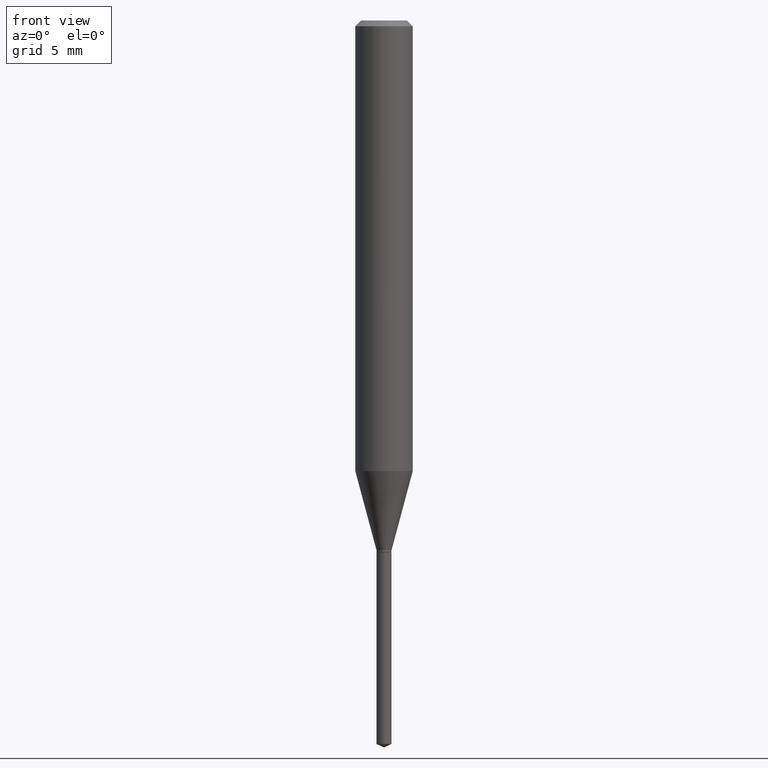
[diagram: clean part render]
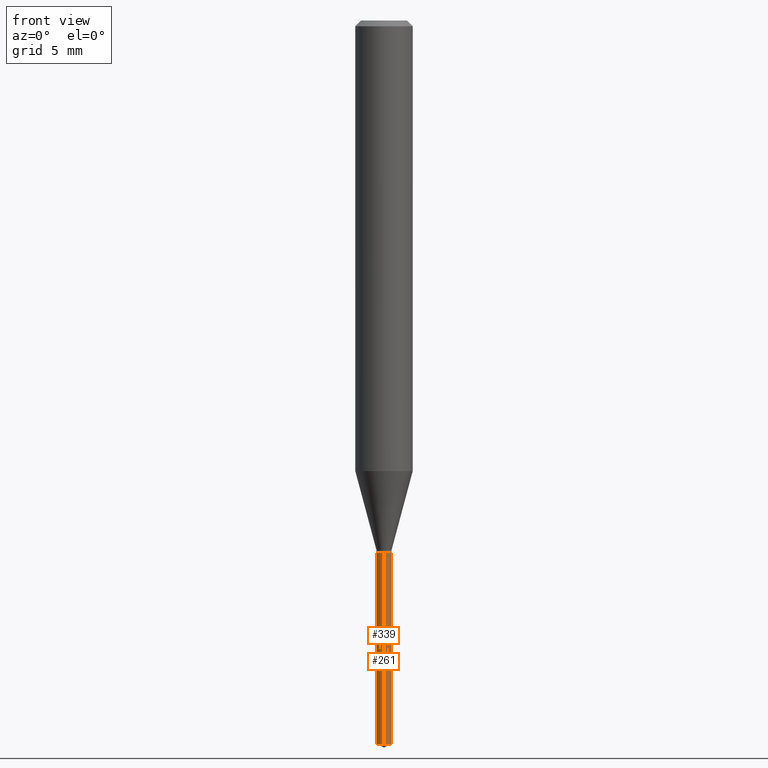
[diagram: same view with one multi-face feature highlighted, each face labeled with its STEP entity id]
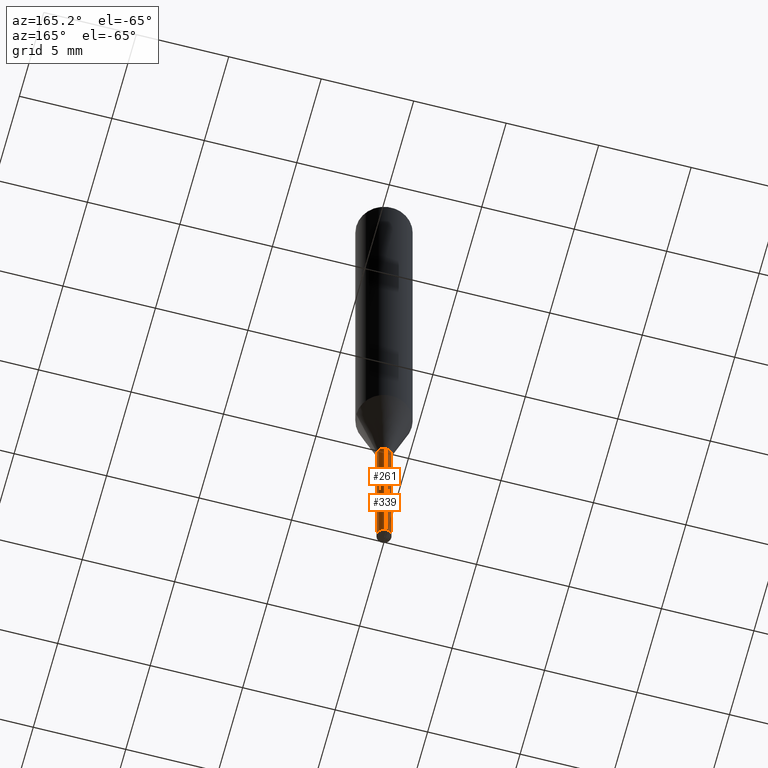
[diagram: same view with one multi-face feature highlighted, each face labeled with its STEP entity id]
A machine part, front view. The highlighted faces form ONE feature: a constant-radius fillet chain: 2 tangent blend faces with common blend radius 0.395 mm. The faces share edges in the B-rep.
A second angle (auxiliary view) of the same feature is appended — it is thin or edge-on in the first view.
Their STEP definitions:
[1] entity #261 (Cylinder):
#9 = CARTESIAN_POINT ( 'NONE',  ( 1.104893954107223233E-16, 0.01554999999999617626, -1.094499999999999806 ) ) ;
#15 = CARTESIAN_POINT ( 'NONE',  ( 1.104893954107319992E-16, 0.01554999999999480235, -1.488848915915689686 ) ) ;
#21 = CARTESIAN_POINT ( 'NONE',  ( 2.676565608369631794E-29, -3.821426325363822773E-15, -1.094499999999999806 ) ) ;
#27 = LINE ( 'NONE', #413, #350 ) ;
#72 = AXIS2_PLACEMENT_3D ( 'NONE', #78, #227, #305 ) ;
#78 = CARTESIAN_POINT ( 'NONE',  ( 3.640934136390131342E-29, -5.198287410918146511E-15, -1.488848915915689686 ) ) ;
#79 = ORIENTED_EDGE ( 'NONE', *, *, #431, .T. ) ;
#82 = EDGE_CURVE ( 'NONE', #337, #141, #274, .T. ) ;
#93 = FACE_OUTER_BOUND ( 'NONE', #434, .T. ) ;
#106 = ORIENTED_EDGE ( 'NONE', *, *, #426, .F. ) ;
#127 = AXIS2_PLACEMENT_3D ( 'NONE', #21, #363, #129 ) ;
#129 = DIRECTION ( 'NONE',  ( -6.982962677686265922E-15, -1.000000000000000000, 0.000000000000000000 ) ) ;
#136 = VERTEX_POINT ( 'NONE', #466 ) ;
#139 = ORIENTED_EDGE ( 'NONE', *, *, #82, .T. ) ;
#141 = VERTEX_POINT ( 'NONE', #314 ) ;
#159 = DIRECTION ( 'NONE',  ( -2.445470214571802396E-29, 3.491479321953280158E-15, 1.000000000000000000 ) ) ;
#186 = DIRECTION ( 'NONE',  ( -6.982962677686265922E-15, -1.000000000000000000, 0.000000000000000000 ) ) ;
#217 = DIRECTION ( 'NONE',  ( -2.445470214571802116E-29, 3.491479321953280158E-15, 1.000000000000000000 ) ) ;
#221 = DIRECTION ( 'NONE',  ( -2.445470214571802396E-29, 3.491479321953280158E-15, 1.000000000000000000 ) ) ;
#227 = DIRECTION ( 'NONE',  ( -2.445470214571802116E-29, 3.491479321953280158E-15, 1.000000000000000000 ) ) ;
#246 = VECTOR ( 'NONE', #159, 39.37007874015748143 ) ;
#261 = ADVANCED_FACE ( 'NONE', ( #93 ), #323, .T. ) ;
#265 = CIRCLE ( 'NONE', #285, 0.01554999999999999959 ) ;
#274 = LINE ( 'NONE', #9, #246 ) ;
#285 = AXIS2_PLACEMENT_3D ( 'NONE', #301, #217, #186 ) ;
#301 = CARTESIAN_POINT ( 'NONE',  ( 2.676565608369631794E-29, -3.821426325363822773E-15, -1.094499999999999806 ) ) ;
#305 = DIRECTION ( 'NONE',  ( -6.982962677686265922E-15, -1.000000000000000000, 0.000000000000000000 ) ) ;
#314 = CARTESIAN_POINT ( 'NONE',  ( 1.104893954107320238E-16, 0.01554999999999617626, -1.094499999999999806 ) ) ;
#323 = CYLINDRICAL_SURFACE ( 'NONE', #127, 0.01554999999999999959 ) ;
#337 = VERTEX_POINT ( 'NONE', #15 ) ;
#350 = VECTOR ( 'NONE', #221, 39.37007874015748143 ) ;
#353 = CIRCLE ( 'NONE', #72, 0.01554999999999999959 ) ;
#363 = DIRECTION ( 'NONE',  ( -2.445470214571802116E-29, 3.491479321953280158E-15, 1.000000000000000000 ) ) ;
#364 = ORIENTED_EDGE ( 'NONE', *, *, #485, .F. ) ;
#404 = CARTESIAN_POINT ( 'NONE',  ( -1.085850696379946697E-16, -0.01555000000000382118, -1.094499999999999806 ) ) ;
#405 = VERTEX_POINT ( 'NONE', #404 ) ;
#413 = CARTESIAN_POINT ( 'NONE',  ( -1.085850696379946697E-16, -0.01555000000000382118, -1.094499999999999806 ) ) ;
#426 = EDGE_CURVE ( 'NONE', #405, #141, #265, .T. ) ;
#431 = EDGE_CURVE ( 'NONE', #136, #337, #353, .T. ) ;
#434 = EDGE_LOOP ( 'NONE', ( #79, #139, #106, #364 ) ) ;
#466 = CARTESIAN_POINT ( 'NONE',  ( -1.085850696379850431E-16, -0.01555000000000520202, -1.488848915915689686 ) ) ;
#485 = EDGE_CURVE ( 'NONE', #136, #405, #27, .T. ) ;
[2] entity #339 (Cylinder):
#9 = CARTESIAN_POINT ( 'NONE',  ( 1.104893954107223233E-16, 0.01554999999999617626, -1.094499999999999806 ) ) ;
#15 = CARTESIAN_POINT ( 'NONE',  ( 1.104893954107319992E-16, 0.01554999999999480235, -1.488848915915689686 ) ) ;
#27 = LINE ( 'NONE', #413, #350 ) ;
#46 = AXIS2_PLACEMENT_3D ( 'NONE', #402, #210, #475 ) ;
#49 = DIRECTION ( 'NONE',  ( -6.982962677686265922E-15, -1.000000000000000000, 0.000000000000000000 ) ) ;
#74 = AXIS2_PLACEMENT_3D ( 'NONE', #248, #212, #49 ) ;
#82 = EDGE_CURVE ( 'NONE', #337, #141, #274, .T. ) ;
#101 = CIRCLE ( 'NONE', #74, 0.01554999999999999959 ) ;
#132 = ORIENTED_EDGE ( 'NONE', *, *, #412, .F. ) ;
#136 = VERTEX_POINT ( 'NONE', #466 ) ;
#141 = VERTEX_POINT ( 'NONE', #314 ) ;
#159 = DIRECTION ( 'NONE',  ( -2.445470214571802396E-29, 3.491479321953280158E-15, 1.000000000000000000 ) ) ;
#170 = ORIENTED_EDGE ( 'NONE', *, *, #485, .T. ) ;
#208 = FACE_OUTER_BOUND ( 'NONE', #444, .T. ) ;
#210 = DIRECTION ( 'NONE',  ( -2.445470214571802116E-29, 3.491479321953280158E-15, 1.000000000000000000 ) ) ;
#212 = DIRECTION ( 'NONE',  ( -2.445470214571802116E-29, 3.491479321953280158E-15, 1.000000000000000000 ) ) ;
#221 = DIRECTION ( 'NONE',  ( -2.445470214571802396E-29, 3.491479321953280158E-15, 1.000000000000000000 ) ) ;
#246 = VECTOR ( 'NONE', #159, 39.37007874015748143 ) ;
#248 = CARTESIAN_POINT ( 'NONE',  ( 2.676565608369631794E-29, -3.821426325363822773E-15, -1.094499999999999806 ) ) ;
#249 = ORIENTED_EDGE ( 'NONE', *, *, #82, .F. ) ;
#251 = DIRECTION ( 'NONE',  ( -6.982962677686265922E-15, -1.000000000000000000, 0.000000000000000000 ) ) ;
#274 = LINE ( 'NONE', #9, #246 ) ;
#314 = CARTESIAN_POINT ( 'NONE',  ( 1.104893954107320238E-16, 0.01554999999999617626, -1.094499999999999806 ) ) ;
#331 = CYLINDRICAL_SURFACE ( 'NONE', #46, 0.01554999999999999959 ) ;
#337 = VERTEX_POINT ( 'NONE', #15 ) ;
#339 = ADVANCED_FACE ( 'NONE', ( #208 ), #331, .T. ) ;
#350 = VECTOR ( 'NONE', #221, 39.37007874015748143 ) ;
#395 = CARTESIAN_POINT ( 'NONE',  ( 3.640934136390131342E-29, -5.198287410918146511E-15, -1.488848915915689686 ) ) ;
#398 = EDGE_CURVE ( 'NONE', #337, #136, #454, .T. ) ;
#402 = CARTESIAN_POINT ( 'NONE',  ( 2.676565608369631794E-29, -3.821426325363822773E-15, -1.094499999999999806 ) ) ;
#404 = CARTESIAN_POINT ( 'NONE',  ( -1.085850696379946697E-16, -0.01555000000000382118, -1.094499999999999806 ) ) ;
#405 = VERTEX_POINT ( 'NONE', #404 ) ;
#409 = ORIENTED_EDGE ( 'NONE', *, *, #398, .T. ) ;
#412 = EDGE_CURVE ( 'NONE', #141, #405, #101, .T. ) ;
#413 = CARTESIAN_POINT ( 'NONE',  ( -1.085850696379946697E-16, -0.01555000000000382118, -1.094499999999999806 ) ) ;
#436 = DIRECTION ( 'NONE',  ( -2.445470214571802116E-29, 3.491479321953280158E-15, 1.000000000000000000 ) ) ;
#444 = EDGE_LOOP ( 'NONE', ( #249, #409, #170, #132 ) ) ;
#454 = CIRCLE ( 'NONE', #479, 0.01554999999999999959 ) ;
#466 = CARTESIAN_POINT ( 'NONE',  ( -1.085850696379850431E-16, -0.01555000000000520202, -1.488848915915689686 ) ) ;
#475 = DIRECTION ( 'NONE',  ( -6.982962677686265922E-15, -1.000000000000000000, 0.000000000000000000 ) ) ;
#479 = AXIS2_PLACEMENT_3D ( 'NONE', #395, #436, #251 ) ;
#485 = EDGE_CURVE ( 'NONE', #136, #405, #27, .T. ) ;